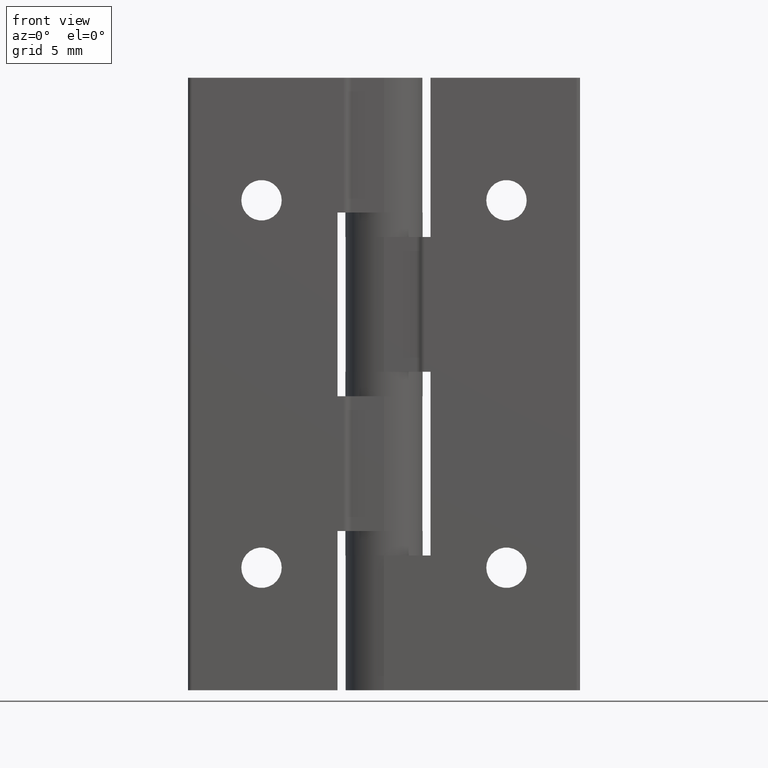
[diagram: clean part render]
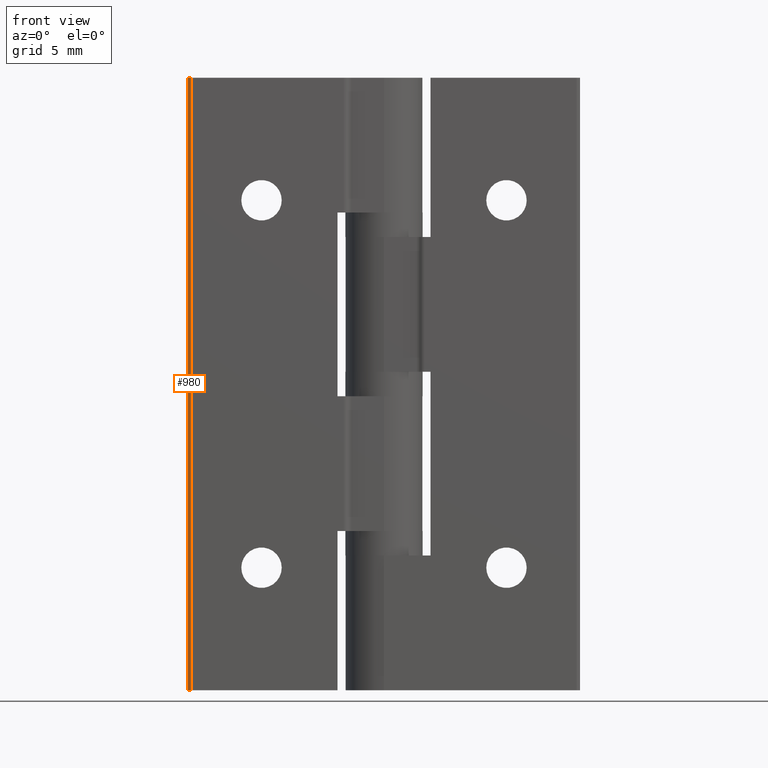
[diagram: same view with one face highlighted and labeled with its STEP entity id]
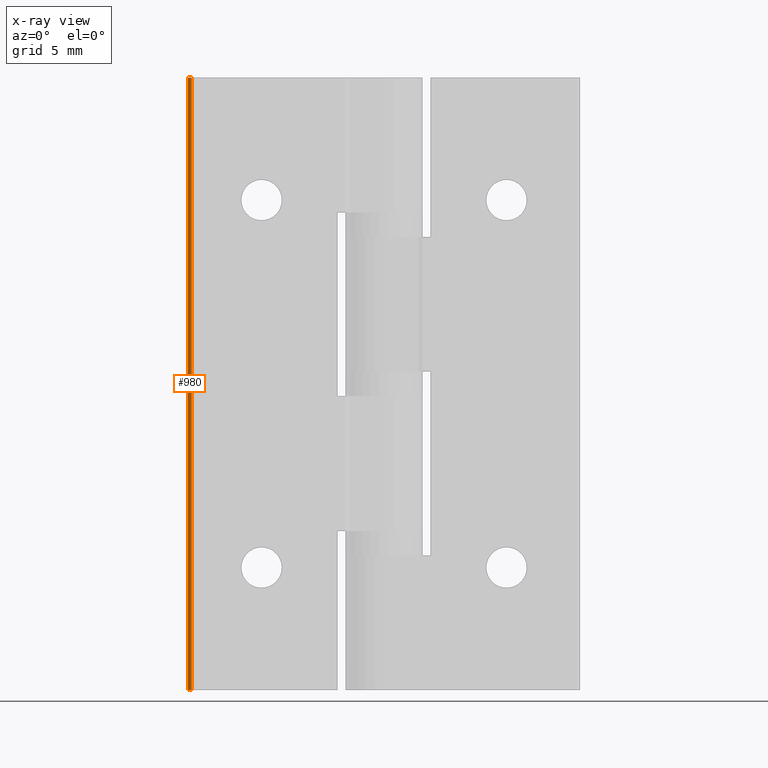
[diagram: x-ray of the same camera — body ghosted, the highlighted face saturated]
A machine part, front view. The second image highlights one B-rep face of the part: STEP entity #980.
The next image is the same camera in x-ray: the body ghosted, the highlighted face saturated — about 0% of this face is hidden behind the body in this view.
In plain terms, the highlighted cylindrical surface (edge-blend (fillet) strip) has radius 0.3 mm, axis along (0, 0, -1).
Its self-contained STEP definition (entity closure, byte-faithful):
#60=CYLINDRICAL_SURFACE('',#1057,0.3);
#128=CIRCLE('',#1058,0.3);
#129=CIRCLE('',#1059,0.3);
#179=FACE_OUTER_BOUND('',#242,.T.);
#242=EDGE_LOOP('',(#750,#751,#752,#753));
#341=LINE('',#1561,#415);
#342=LINE('',#1564,#416);
#415=VECTOR('',#1238,50.);
#416=VECTOR('',#1241,50.);
#494=VERTEX_POINT('',#1557);
#495=VERTEX_POINT('',#1558);
#496=VERTEX_POINT('',#1560);
#497=VERTEX_POINT('',#1562);
#598=EDGE_CURVE('',#494,#495,#128,.T.);
#599=EDGE_CURVE('',#495,#496,#341,.T.);
#600=EDGE_CURVE('',#496,#497,#129,.T.);
#601=EDGE_CURVE('',#497,#494,#342,.T.);
#750=ORIENTED_EDGE('',*,*,#598,.T.);
#751=ORIENTED_EDGE('',*,*,#599,.T.);
#752=ORIENTED_EDGE('',*,*,#600,.T.);
#753=ORIENTED_EDGE('',*,*,#601,.T.);
#980=ADVANCED_FACE('',(#179),#60,.T.);
#1057=AXIS2_PLACEMENT_3D('',#1556,#1234,#1235);
#1058=AXIS2_PLACEMENT_3D('',#1559,#1236,#1237);
#1059=AXIS2_PLACEMENT_3D('',#1563,#1239,#1240);
#1234=DIRECTION('center_axis',(0.,0.,-1.));
#1235=DIRECTION('ref_axis',(-0.707106781186545,-0.70710678118655,0.));
#1236=DIRECTION('center_axis',(0.,0.,1.));
#1237=DIRECTION('ref_axis',(-0.707106781186545,-0.70710678118655,0.));
#1238=DIRECTION('',(0.,0.,1.));
#1239=DIRECTION('center_axis',(0.,0.,-1.));
#1240=DIRECTION('ref_axis',(-0.707106781186545,-0.70710678118655,0.));
#1241=DIRECTION('',(0.,0.,-1.));
#1556=CARTESIAN_POINT('Origin',(-15.7,0.3,0.));
#1557=CARTESIAN_POINT('',(-16.,0.3,-50.));
#1558=CARTESIAN_POINT('',(-15.7,2.08166817117216E-17,-50.));
#1559=CARTESIAN_POINT('Origin',(-15.7,0.3,-50.));
#1560=CARTESIAN_POINT('',(-15.7,2.08166817117216E-17,0.));
#1561=CARTESIAN_POINT('',(-15.7,3.46944695195361E-17,0.));
#1562=CARTESIAN_POINT('',(-16.,0.3,0.));
#1563=CARTESIAN_POINT('Origin',(-15.7,0.3,0.));
#1564=CARTESIAN_POINT('',(-16.,0.3,0.));